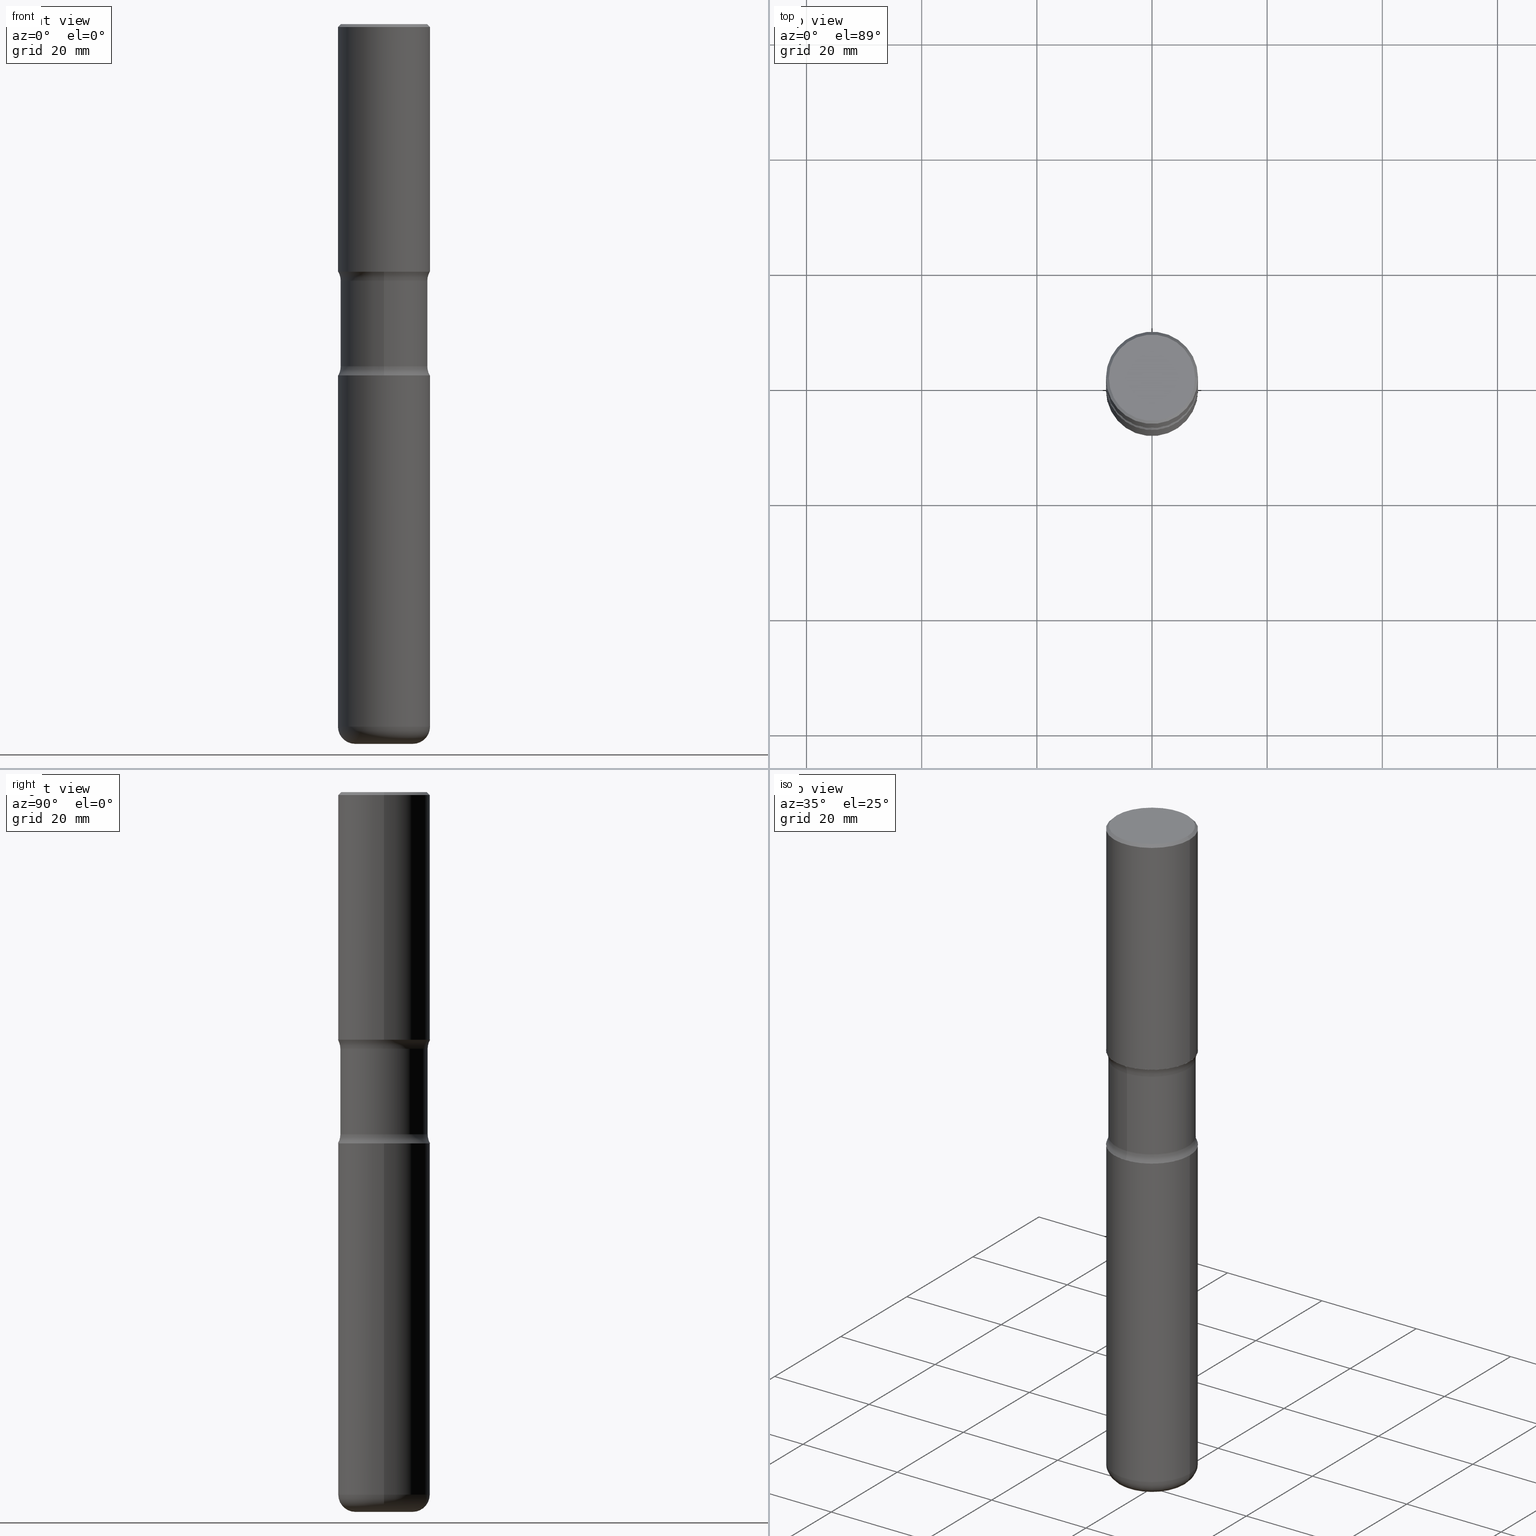
[diagram: canonical four-view strip — front | top / right | iso, engineering-drawing reading convention]
A machine part, canonical four-view strip (front | top / right | iso — engineering-drawing reading convention). The complete STEP part file that produces these views, byte-faithful:
ISO-10303-21;
HEADER;
FILE_DESCRIPTION (( 'STEP AP203' ),
    '1' );
FILE_NAME ('44755.STEP',
    '2024-03-02T02:49:36',
    ( '' ),
    ( '' ),
    'SwSTEP 2.0',
    'SolidWorks 2023',
    '' );
FILE_SCHEMA (( 'CONFIG_CONTROL_DESIGN' ));
ENDSEC;

DATA;
#1 = AXIS2_PLACEMENT_3D ( 'NONE', #361, #317, #101 ) ;
#2 = DIRECTION ( 'NONE',  ( -2.445468806185136597E-29, 3.491481338843145583E-15, 1.000000000000000000 ) ) ;
#3 = CYLINDRICAL_SURFACE ( 'NONE', #406, 0.3149500000000002853 ) ;
#4 = ORIENTED_EDGE ( 'NONE', *, *, #58, .T. ) ;
#5 = CARTESIAN_POINT ( 'NONE',  ( 2.199284095337349824E-15, 0.3149499999999917921, -2.401600000000000623 ) ) ;
#6 = EDGE_LOOP ( 'NONE', ( #503, #223 ) ) ;
#7 = AXIS2_PLACEMENT_3D ( 'NONE', #441, #45, #51 ) ;
#8 = CC_DESIGN_APPROVAL ( #261, ( #135 ) ) ;
#9 = CYLINDRICAL_SURFACE ( 'NONE', #189, 0.2984999999999999876 ) ;
#10 = VERTEX_POINT ( 'NONE', #342 ) ;
#11 = ADVANCED_FACE ( 'NONE', ( #46 ), #222, .T. ) ;
#12 = PLANE ( 'NONE',  #1 ) ;
#13 = ORIENTED_EDGE ( 'NONE', *, *, #76, .F. ) ;
#14 = ADVANCED_FACE ( 'NONE', ( #220 ), #553, .F. ) ;
#15 = AXIS2_PLACEMENT_3D ( 'NONE', #422, #32, #125 ) ;
#16 = CIRCLE ( 'NONE', #197, 0.1180000000000000770 ) ;
#17 = PERSON_AND_ORGANIZATION ( #469, #371 ) ;
#18 = VERTEX_POINT ( 'NONE', #352 ) ;
#19 = DIRECTION ( 'NONE',  ( -2.445468806185136597E-29, 3.491481338843145583E-15, 1.000000000000000000 ) ) ;
#20 = DIRECTION ( 'NONE',  ( 1.000000000000000000, -6.982962677686267499E-15, 4.876176775795936353E-29 ) ) ;
#21 = CIRCLE ( 'NONE', #217, 0.2984999999999999876 ) ;
#22 = CIRCLE ( 'NONE', #463, 0.3149500000000002298 ) ;
#23 = ORIENTED_EDGE ( 'NONE', *, *, #465, .T. ) ;
#24 = PLANE ( 'NONE',  #146 ) ;
#25 = APPROVAL_ROLE ( '' ) ;
#26 = CARTESIAN_POINT ( 'NONE',  ( 0.3149500000000002853, -2.199284095337291843E-15, 1.535751875536931531E-29 ) ) ;
#27 = DIRECTION ( 'NONE',  ( -2.445468806185136877E-29, 3.491481338843145188E-15, 1.000000000000000000 ) ) ;
#28 = DIRECTION ( 'NONE',  ( 2.492786920893409468E-29, -3.423719105401062515E-15, -1.000000000000000000 ) ) ;
#29 = CARTESIAN_POINT ( 'NONE',  ( 2.084414359289392801E-15, 0.2984999999999937703, -1.754983042035705765 ) ) ;
#30 = ORIENTED_EDGE ( 'NONE', *, *, #394, .T. ) ;
#31 = EDGE_CURVE ( 'NONE', #148, #131, #298, .T. ) ;
#32 = DIRECTION ( 'NONE',  ( -1.000000000000000000, 6.982962677686265922E-15, -4.883557194083112340E-29 ) ) ;
#33 = APPLICATION_CONTEXT ( 'configuration controlled 3d designs of mechanical parts and assemblies' ) ;
#34 = CARTESIAN_POINT ( 'NONE',  ( 4.261159589292944874E-29, -6.171306750507024849E-15, -1.754983042035704655 ) ) ;
#35 = DIRECTION ( 'NONE',  ( 2.492786920893409468E-29, -3.423719105401062515E-15, -1.000000000000000000 ) ) ;
#36 = ORIENTED_EDGE ( 'NONE', *, *, #165, .T. ) ;
#37 = CARTESIAN_POINT ( 'NONE',  ( -2.905420902056200286E-15, -0.4235000000000060938, -1.754983042035703100 ) ) ;
#38 = ORIENTED_EDGE ( 'NONE', *, *, #396, .F. ) ;
#39 = DIRECTION ( 'NONE',  ( 1.000000000000000000, -6.860497997771530774E-15, 4.841628727647021733E-29 ) ) ;
#40 = EDGE_CURVE ( 'NONE', #169, #558, #426, .T. ) ;
#41 = LINE ( 'NONE', #391, #54 ) ;
#42 = ORIENTED_EDGE ( 'NONE', *, *, #256, .F. ) ;
#43 = CIRCLE ( 'NONE', #543, 0.3149500000000002298 ) ;
#44 = AXIS2_PLACEMENT_3D ( 'NONE', #455, #114, #68 ) ;
#45 = DIRECTION ( 'NONE',  ( -2.492786920893409188E-29, 3.423719105401062515E-15, 1.000000000000000000 ) ) ;
#46 = FACE_OUTER_BOUND ( 'NONE', #411, .T. ) ;
#47 = DATE_AND_TIME ( #50, #357 ) ;
#48 = DIRECTION ( 'NONE',  ( 2.492786920893409468E-29, -3.423719105401062515E-15, -1.000000000000000000 ) ) ;
#49 = ORIENTED_EDGE ( 'NONE', *, *, #256, .T. ) ;
#50 = CALENDAR_DATE ( 2024, 1, 3 ) ;
#51 = DIRECTION ( 'NONE',  ( -6.982962677686265922E-15, -1.000000000000000000, 3.423719105401062515E-15 ) ) ;
#52 = ORIENTED_EDGE ( 'NONE', *, *, #493, .F. ) ;
#53 = DIRECTION ( 'NONE',  ( 2.492786920893409468E-29, -3.423719105401062515E-15, -1.000000000000000000 ) ) ;
#54 = VECTOR ( 'NONE', #350, 39.37007874015748143 ) ;
#55 = ORIENTED_EDGE ( 'NONE', *, *, #76, .T. ) ;
#56 = ORIENTED_EDGE ( 'NONE', *, *, #234, .F. ) ;
#57 = VERTEX_POINT ( 'NONE', #246 ) ;
#58 = EDGE_CURVE ( 'NONE', #227, #131, #451, .T. ) ;
#59 = DIRECTION ( 'NONE',  ( -1.000000000000000000, 6.982962677686265922E-15, -4.883557194083112340E-29 ) ) ;
#60 = FACE_OUTER_BOUND ( 'NONE', #186, .T. ) ;
#61 = ADVANCED_FACE ( 'NONE', ( #208 ), #287, .F. ) ;
#62 = ORIENTED_EDGE ( 'NONE', *, *, #96, .T. ) ;
#63 = CIRCLE ( 'NONE', #443, 0.2984999999999999876 ) ;
#64 = SECURITY_CLASSIFICATION ( '', '', #107 ) ;
#65 = EDGE_LOOP ( 'NONE', ( #77, #316, #537, #83 ) ) ;
#66 = DIRECTION ( 'NONE',  ( -2.445468806185136597E-29, 3.491481338843145583E-15, 1.000000000000000000 ) ) ;
#67 = CARTESIAN_POINT ( 'NONE',  ( 0.3149500000000003408, -8.110362001998734458E-15, -1.692999999999998950 ) ) ;
#68 = DIRECTION ( 'NONE',  ( -1.000000000000000000, 7.105427357601009747E-15, 0.000000000000000000 ) ) ;
#69 = DIRECTION ( 'NONE',  ( 6.982962677686265922E-15, 1.000000000000000000, -3.423719105401062515E-15 ) ) ;
#70 = CARTESIAN_POINT ( 'NONE',  ( 0.000000000000000000, 0.000000000000000000, 0.000000000000000000 ) ) ;
#71 = DIRECTION ( 'NONE',  ( -2.445468806185136877E-29, 3.491481338843145188E-15, 1.000000000000000000 ) ) ;
#72 = AXIS2_PLACEMENT_3D ( 'NONE', #472, #132, #464 ) ;
#73 = CARTESIAN_POINT ( 'NONE',  ( 0.000000000000000000, 0.000000000000000000, 0.000000000000000000 ) ) ;
#74 = CARTESIAN_POINT ( 'NONE',  ( 4.890937612370289799E-31, -6.982962677686315028E-17, -0.02000000000000006981 ) ) ;
#75 = VERTEX_POINT ( 'NONE', #466 ) ;
#76 = EDGE_CURVE ( 'NONE', #169, #148, #21, .T. ) ;
#77 = ORIENTED_EDGE ( 'NONE', *, *, #484, .T. ) ;
#78 = CARTESIAN_POINT ( 'NONE',  ( 4.890937612370289799E-31, -6.982962677686315028E-17, -0.02000000000000006981 ) ) ;
#79 = CARTESIAN_POINT ( 'NONE',  ( -2.047858652334680349E-15, -0.2985000000000169740, -4.921299999999997787 ) ) ;
#80 = APPROVAL ( #160, 'UNSPECIFIED' ) ;
#81 = DIRECTION ( 'NONE',  ( -2.445468806185136597E-29, 3.491481338843145583E-15, 1.000000000000000000 ) ) ;
#82 = CIRCLE ( 'NONE', #270, 0.1250000000000000555 ) ;
#83 = ORIENTED_EDGE ( 'NONE', *, *, #31, .F. ) ;
#84 = CARTESIAN_POINT ( 'NONE',  ( 4.291756284682213551E-29, -6.127490541253838006E-15, -1.754983042035704655 ) ) ;
#85 = CARTESIAN_POINT ( 'NONE',  ( 5.873037884934222106E-29, -8.385141583365695685E-15, -2.401599999999999291 ) ) ;
#86 = DIRECTION ( 'NONE',  ( 6.982962677686265922E-15, 1.000000000000000000, -3.660767830705880744E-15 ) ) ;
#87 = DIRECTION ( 'NONE',  ( 6.982962677686265922E-15, 1.000000000000000000, -3.660767830705880744E-15 ) ) ;
#88 = PLANE ( 'NONE',  #7 ) ;
#89 = AXIS2_PLACEMENT_3D ( 'NONE', #252, #19, #331 ) ;
#90 = CARTESIAN_POINT ( 'NONE',  ( 1.174632031674906636E-28, -1.677063231486527962E-14, -4.803299999999999237 ) ) ;
#91 = CIRCLE ( 'NONE', #275, 0.2984999999999999876 ) ;
#92 = CIRCLE ( 'NONE', #233, 0.1250000000000000555 ) ;
#93 = CARTESIAN_POINT ( 'NONE',  ( 1.215411308950934395E-28, -1.701188661324475001E-14, -4.921299999999998676 ) ) ;
#94 = EDGE_CURVE ( 'NONE', #140, #392, #145, .T. ) ;
#95 = CARTESIAN_POINT ( 'NONE',  ( -0.3149500000000001743, 2.129454468560427756E-15, -0.02000000000000006981 ) ) ;
#96 = EDGE_CURVE ( 'NONE', #403, #57, #43, .T. ) ;
#97 = COORDINATED_UNIVERSAL_TIME_OFFSET ( 5, 0, .BEHIND. ) ;
#98 = ORIENTED_EDGE ( 'NONE', *, *, #102, .T. ) ;
#99 = CLOSED_SHELL ( 'NONE', ( #176, #239, #61, #14, #347, #327, #291, #195 ) ) ;
#100 = CIRCLE ( 'NONE', #412, 0.3149500000000002298 ) ;
#101 = DIRECTION ( 'NONE',  ( -1.000000000000000000, 6.982962677686265922E-15, -4.876176775795935793E-29 ) ) ;
#102 = EDGE_CURVE ( 'NONE', #558, #131, #519, .T. ) ;
#103 = CARTESIAN_POINT ( 'NONE',  ( 1.174632031674906636E-28, -1.677063231486527962E-14, -4.803299999999999237 ) ) ;
#104 = EDGE_LOOP ( 'NONE', ( #209, #257 ) ) ;
#105 = DIRECTION ( 'NONE',  ( 1.000000000000000000, -6.982962677686267499E-15, 4.876176775795936353E-29 ) ) ;
#106 = DIRECTION ( 'NONE',  ( 2.438088387897960049E-29, -3.491481338843145188E-15, -1.000000000000000000 ) ) ;
#107 = SECURITY_CLASSIFICATION_LEVEL ( 'unclassified' ) ;
#108 = CARTESIAN_POINT ( 'NONE',  ( 1.203488563587891146E-28, -1.718262711284877024E-14, -4.921299999999999564 ) ) ;
#109 = VECTOR ( 'NONE', #240, 39.37007874015748143 ) ;
#110 = AXIS2_PLACEMENT_3D ( 'NONE', #467, #354, #305 ) ;
#111 = FACE_OUTER_BOUND ( 'NONE', #104, .T. ) ;
#112 = DIRECTION ( 'NONE',  ( 1.000000000000000000, -6.982962677686268288E-15, 0.000000000000000000 ) ) ;
#113 = ADVANCED_FACE ( 'NONE', ( #367 ), #194, .F. ) ;
#114 = DIRECTION ( 'NONE',  ( 7.105427357601001859E-15, 1.000000000000000000, -3.491481338843145583E-15 ) ) ;
#115 = CYLINDRICAL_SURFACE ( 'NONE', #260, 0.3149500000000002853 ) ;
#116 = DIRECTION ( 'NONE',  ( -2.445468806185136597E-29, 3.491481338843145583E-15, 1.000000000000000000 ) ) ;
#117 = COORDINATED_UNIVERSAL_TIME_OFFSET ( 5, 0, .BEHIND. ) ;
#118 = ORIENTED_EDGE ( 'NONE', *, *, #415, .F. ) ;
#119 = AXIS2_PLACEMENT_3D ( 'NONE', #556, #124, #251 ) ;
#120 = VERTEX_POINT ( 'NONE', #67 ) ;
#121 = EDGE_CURVE ( 'NONE', #382, #266, #376, .T. ) ;
#122 = TOROIDAL_SURFACE ( 'NONE', #181, 0.4235000000000000986, 0.1250000000000000278 ) ;
#123 = CC_DESIGN_SECURITY_CLASSIFICATION ( #64, ( #509 ) ) ;
#124 = DIRECTION ( 'NONE',  ( -2.445468806185136597E-29, 3.491481338843145583E-15, 1.000000000000000000 ) ) ;
#125 = DIRECTION ( 'NONE',  ( -6.982962677686265133E-15, -1.000000000000000000, 0.000000000000000000 ) ) ;
#126 = VERTEX_POINT ( 'NONE', #235 ) ;
#127 = AXIS2_PLACEMENT_3D ( 'NONE', #294, #81, #496 ) ;
#128 = ORIENTED_EDGE ( 'NONE', *, *, #40, .F. ) ;
#129 = DATE_AND_TIME ( #339, #407 ) ;
#130 = CARTESIAN_POINT ( 'NONE',  ( 1.174632031674906636E-28, -1.677063231486527962E-14, -4.803299999999999237 ) ) ;
#131 = VERTEX_POINT ( 'NONE', #156 ) ;
#132 = DIRECTION ( 'NONE',  ( 2.492786920893409468E-29, -3.423719105401062515E-15, -1.000000000000000000 ) ) ;
#133 = ORIENTED_EDGE ( 'NONE', *, *, #373, .F. ) ;
#134 = CARTESIAN_POINT ( 'NONE',  ( 1.215411308950934395E-28, -1.701188661324475001E-14, -4.921299999999998676 ) ) ;
#135 = PRODUCT_DEFINITION ( 'UNKNOWN', '', #509, #479 ) ;
#136 = LINE ( 'NONE', #191, #495 ) ;
#137 = DIRECTION ( 'NONE',  ( 2.492786920893409468E-29, -3.423719105401062515E-15, -1.000000000000000000 ) ) ;
#138 = CIRCLE ( 'NONE', #247, 0.3149500000000003408 ) ;
#139 = DIRECTION ( 'NONE',  ( -2.445468806185136597E-29, 3.491481338843145583E-15, 1.000000000000000000 ) ) ;
#140 = VERTEX_POINT ( 'NONE', #325 ) ;
#141 = CC_DESIGN_PERSON_AND_ORGANIZATION_ASSIGNMENT ( #448, #193, ( #509 ) ) ;
#142 = ORIENTED_EDGE ( 'NONE', *, *, #121, .T. ) ;
#143 = CARTESIAN_POINT ( 'NONE',  ( -3.131554243005663153E-46, 4.471029511141347348E-32, 1.280553747030124924E-17 ) ) ;
#144 = ADVANCED_FACE ( 'NONE', ( #225 ), #534, .T. ) ;
#145 = CIRCLE ( 'NONE', #89, 0.1969500000000003470 ) ;
#146 = AXIS2_PLACEMENT_3D ( 'NONE', #199, #106, #322 ) ;
#147 = DIRECTION ( 'NONE',  ( 1.000000000000000000, -6.982962677686264344E-15, 0.000000000000000000 ) ) ;
#148 = VERTEX_POINT ( 'NONE', #29 ) ;
#149 = CARTESIAN_POINT ( 'NONE',  ( 5.718527368430429032E-29, -8.172929058137173834E-15, -2.339616957964294031 ) ) ;
#150 = CARTESIAN_POINT ( 'NONE',  ( 2.199284095337332469E-15, 0.3149499999999942901, -1.692999999999999616 ) ) ;
#151 = APPROVAL_ROLE ( '' ) ;
#152 = DIRECTION ( 'NONE',  ( -2.445468806185136597E-29, 3.491481338843145583E-15, 1.000000000000000000 ) ) ;
#153 = EDGE_CURVE ( 'NONE', #18, #314, #248, .T. ) ;
#154 = CARTESIAN_POINT ( 'NONE',  ( -2.104286248366415800E-15, -0.2985000000000081477, -2.339616957964292698 ) ) ;
#155 = AXIS2_PLACEMENT_3D ( 'NONE', #328, #39, #346 ) ;
#156 = CARTESIAN_POINT ( 'NONE',  ( 2.084414359289407790E-15, 0.2984999999999918274, -2.339616957964294919 ) ) ;
#157 = ORIENTED_EDGE ( 'NONE', *, *, #200, .F. ) ;
#158 = DIRECTION ( 'NONE',  ( 6.982962677686264344E-15, 1.000000000000000000, -3.469564049740290403E-15 ) ) ;
#159 = DIMENSIONAL_EXPONENTS ( 1.000000000000000000, 0.000000000000000000, 0.000000000000000000, 0.000000000000000000, 0.000000000000000000, 0.000000000000000000, 0.000000000000000000 ) ;
#160 = APPROVAL_STATUS ( 'not_yet_approved' ) ;
#161 = DIRECTION ( 'NONE',  ( 1.000000000000000000, -6.982962677686278543E-15, 0.000000000000000000 ) ) ;
#162 = DIRECTION ( 'NONE',  ( 0.000000000000000000, 0.000000000000000000, 1.000000000000000000 ) ) ;
#163 = CARTESIAN_POINT ( 'NONE',  ( 0.000000000000000000, 0.000000000000000000, 0.000000000000000000 ) ) ;
#164 = DIRECTION ( 'NONE',  ( 2.445468806185136597E-29, -3.491481338843145583E-15, -1.000000000000000000 ) ) ;
#165 = EDGE_CURVE ( 'NONE', #382, #289, #203, .T. ) ;
#166 = CONICAL_SURFACE ( 'NONE', #459, 0.3149500000000001743, 0.7853981633974460586 ) ;
#167 = DIRECTION ( 'NONE',  ( 2.492786920893409468E-29, -3.423719105401062515E-15, -1.000000000000000000 ) ) ;
#168 = EDGE_LOOP ( 'NONE', ( #250, #444, #185, #133 ) ) ;
#169 = VERTEX_POINT ( 'NONE', #379 ) ;
#170 = ADVANCED_FACE ( 'NONE', ( #416 ), #238, .T. ) ;
#171 = ORIENTED_EDGE ( 'NONE', *, *, #315, .T. ) ;
#172 = DIRECTION ( 'NONE',  ( -2.445468806185136877E-29, 3.491481338843145188E-15, 1.000000000000000000 ) ) ;
#173 = ORIENTED_EDGE ( 'NONE', *, *, #356, .F. ) ;
#174 = AXIS2_PLACEMENT_3D ( 'NONE', #74, #497, #457 ) ;
#175 = CIRCLE ( 'NONE', #508, 0.3149500000000001743 ) ;
#176 = ADVANCED_FACE ( 'NONE', ( #550 ), #431, .T. ) ;
#177 = DIRECTION ( 'NONE',  ( 1.000000000000000000, -6.982962677686267499E-15, 4.876176775795936353E-29 ) ) ;
#178 = CARTESIAN_POINT ( 'NONE',  ( -0.3149500000000002298, -1.034003260283904930E-14, -2.401599999999999291 ) ) ;
#179 = CARTESIAN_POINT ( 'NONE',  ( 0.000000000000000000, 0.000000000000000000, 0.000000000000000000 ) ) ;
#180 = ORIENTED_EDGE ( 'NONE', *, *, #515, .F. ) ;
#181 = AXIS2_PLACEMENT_3D ( 'NONE', #263, #35, #516 ) ;
#182 = CC_DESIGN_APPROVAL ( #80, ( #509 ) ) ;
#183 = DIRECTION ( 'NONE',  ( -2.445468806185136597E-29, 3.491481338843145583E-15, 1.000000000000000000 ) ) ;
#184 = ORIENTED_EDGE ( 'NONE', *, *, #481, .F. ) ;
#185 = ORIENTED_EDGE ( 'NONE', *, *, #121, .F. ) ;
#186 = EDGE_LOOP ( 'NONE', ( #514, #487, #213, #42 ) ) ;
#187 = AXIS2_PLACEMENT_3D ( 'NONE', #149, #319, #226 ) ;
#188 = PERSON_AND_ORGANIZATION_ROLE ( 'creator' ) ;
#189 = AXIS2_PLACEMENT_3D ( 'NONE', #134, #435, #258 ) ;
#190 = FACE_OUTER_BOUND ( 'NONE', #6, .T. ) ;
#191 = CARTESIAN_POINT ( 'NONE',  ( -0.3149500000000002853, 2.237854346276437562E-15, -1.549218606675783797E-29 ) ) ;
#192 = ORIENTED_EDGE ( 'NONE', *, *, #268, .T. ) ;
#193 = PERSON_AND_ORGANIZATION_ROLE ( 'design_supplier' ) ;
#194 = PLANE ( 'NONE',  #293 ) ;
#195 = ADVANCED_FACE ( 'NONE', ( #427 ), #9, .T. ) ;
#196 = DIRECTION ( 'NONE',  ( -1.000000000000000000, 6.982962677686265922E-15, -4.876176775795935793E-29 ) ) ;
#197 = AXIS2_PLACEMENT_3D ( 'NONE', #372, #546, #161 ) ;
#198 = ORIENTED_EDGE ( 'NONE', *, *, #394, .F. ) ;
#199 = CARTESIAN_POINT ( 'NONE',  ( 4.418398595452827857E-29, -1.046826783882976547E-14, -2.401599999999999291 ) ) ;
#200 = EDGE_CURVE ( 'NONE', #399, #75, #41, .T. ) ;
#201 = PRODUCT_RELATED_PRODUCT_CATEGORY ( 'detail', '', ( #299 ) ) ;
#202 = COORDINATED_UNIVERSAL_TIME_OFFSET ( 5, 0, .BEHIND. ) ;
#203 = LINE ( 'NONE', #26, #109 ) ;
#204 = VECTOR ( 'NONE', #507, 39.37007874015748143 ) ;
#205 = CLOSED_SHELL ( 'NONE', ( #458, #170, #430, #11, #286, #504 ) ) ;
#206 = ORIENTED_EDGE ( 'NONE', *, *, #547, .T. ) ;
#207 = AXIS2_PLACEMENT_3D ( 'NONE', #179, #2, #177 ) ;
#208 = FACE_OUTER_BOUND ( 'NONE', #548, .T. ) ;
#209 = ORIENTED_EDGE ( 'NONE', *, *, #234, .T. ) ;
#210 = DIRECTION ( 'NONE',  ( 2.492786920893409468E-29, -3.423719105401062515E-15, -1.000000000000000000 ) ) ;
#211 = CARTESIAN_POINT ( 'NONE',  ( 5.718527368430429032E-29, -8.172929058137173834E-15, -2.339616957964294031 ) ) ;
#212 = FACE_OUTER_BOUND ( 'NONE', #368, .T. ) ;
#213 = ORIENTED_EDGE ( 'NONE', *, *, #465, .F. ) ;
#214 = DIRECTION ( 'NONE',  ( 6.982962677686266711E-15, 1.000000000000000000, -3.660767830705880744E-15 ) ) ;
#215 = LINE ( 'NONE', #95, #366 ) ;
#216 = ORIENTED_EDGE ( 'NONE', *, *, #400, .T. ) ;
#217 = AXIS2_PLACEMENT_3D ( 'NONE', #34, #210, #86 ) ;
#218 = CIRCLE ( 'NONE', #127, 0.3149500000000003408 ) ;
#219 = CARTESIAN_POINT ( 'NONE',  ( 4.140178688871433779E-29, -5.911077906661441431E-15, -1.692999999999998950 ) ) ;
#220 = FACE_OUTER_BOUND ( 'NONE', #395, .T. ) ;
#221 = CYLINDRICAL_SURFACE ( 'NONE', #207, 0.3149500000000002853 ) ;
#222 = TOROIDAL_SURFACE ( 'NONE', #494, 0.1969500000000003470, 0.1180000000000001187 ) ;
#223 = ORIENTED_EDGE ( 'NONE', *, *, #454, .F. ) ;
#224 = TOROIDAL_SURFACE ( 'NONE', #72, 0.4235000000000000986, 0.1250000000000000278 ) ;
#225 = FACE_OUTER_BOUND ( 'NONE', #362, .T. ) ;
#226 = DIRECTION ( 'NONE',  ( 6.982962677686266711E-15, 1.000000000000000000, -3.660767830705880744E-15 ) ) ;
#227 = VERTEX_POINT ( 'NONE', #5 ) ;
#228 = PERSON_AND_ORGANIZATION ( #469, #371 ) ;
#229 = CALENDAR_DATE ( 2024, 1, 3 ) ;
#230 = DATE_TIME_ROLE ( 'creation_date' ) ;
#231 = CLOSED_SHELL ( 'NONE', ( #345, #144, #512, #528, #113, #329 ) ) ;
#232 = AXIS2_PLACEMENT_3D ( 'NONE', #483, #66, #437 ) ;
#233 = AXIS2_PLACEMENT_3D ( 'NONE', #363, #59, #500 ) ;
#234 = EDGE_CURVE ( 'NONE', #10, #399, #333, .T. ) ;
#235 = CARTESIAN_POINT ( 'NONE',  ( -2.160713844398086565E-15, -0.3149500000000086675, -2.401599999999998403 ) ) ;
#236 = MECHANICAL_CONTEXT ( 'NONE', #336, 'mechanical' ) ;
#237 = CARTESIAN_POINT ( 'NONE',  ( 5.873037884934222106E-29, -8.385141583365695685E-15, -2.401599999999999291 ) ) ;
#238 = TOROIDAL_SURFACE ( 'NONE', #119, 0.1969500000000003470, 0.1180000000000001187 ) ;
#239 = ADVANCED_FACE ( 'NONE', ( #559 ), #122, .F. ) ;
#240 = DIRECTION ( 'NONE',  ( -2.445468806185136877E-29, 3.491481338843145188E-15, 1.000000000000000000 ) ) ;
#241 = EDGE_LOOP ( 'NONE', ( #440, #335, #98, #243 ) ) ;
#242 = LENGTH_MEASURE_WITH_UNIT ( LENGTH_MEASURE( 0.02539999999999999897 ), #326 );
#243 = ORIENTED_EDGE ( 'NONE', *, *, #58, .F. ) ;
#244 = APPROVAL_STATUS ( 'not_yet_approved' ) ;
#245 = DIRECTION ( 'NONE',  ( -2.445468806185136597E-29, 3.491481338843145583E-15, 1.000000000000000000 ) ) ;
#246 = CARTESIAN_POINT ( 'NONE',  ( -2.160713844398104314E-15, -0.3149500000000061695, -1.692999999999997396 ) ) ;
#247 = AXIS2_PLACEMENT_3D ( 'NONE', #219, #139, #309 ) ;
#248 = LINE ( 'NONE', #456, #353 ) ;
#249 = ORIENTED_EDGE ( 'NONE', *, *, #400, .F. ) ;
#250 = ORIENTED_EDGE ( 'NONE', *, *, #530, .T. ) ;
#251 = DIRECTION ( 'NONE',  ( 1.000000000000000000, -6.982962677686266711E-15, 4.883557194083112901E-29 ) ) ;
#252 = CARTESIAN_POINT ( 'NONE',  ( 1.203488563587891146E-28, -1.718262711284877024E-14, -4.921299999999999564 ) ) ;
#253 = PERSON_AND_ORGANIZATION ( #469, #371 ) ;
#254 = DIRECTION ( 'NONE',  ( 2.492786920893409468E-29, -3.423719105401062515E-15, -1.000000000000000000 ) ) ;
#255 = DIRECTION ( 'NONE',  ( 2.492786920893409468E-29, -3.423719105401062515E-15, -1.000000000000000000 ) ) ;
#256 = EDGE_CURVE ( 'NONE', #120, #75, #438, .T. ) ;
#257 = ORIENTED_EDGE ( 'NONE', *, *, #415, .T. ) ;
#258 = DIRECTION ( 'NONE',  ( 6.982962677686265922E-15, 1.000000000000000000, -3.660767830705880744E-15 ) ) ;
#259 = AXIS2_PLACEMENT_3D ( 'NONE', #338, #292, #462 ) ;
#260 = AXIS2_PLACEMENT_3D ( 'NONE', #70, #301, #499 ) ;
#261 = APPROVAL ( #244, 'UNSPECIFIED' ) ;
#262 = DIRECTION ( 'NONE',  ( 1.000000000000000000, -6.982962677686266711E-15, 4.883557194083112901E-29 ) ) ;
#263 = CARTESIAN_POINT ( 'NONE',  ( 5.673769307671268103E-29, -8.237025148614905937E-15, -2.339616957964293587 ) ) ;
#264 = ORIENTED_EDGE ( 'NONE', *, *, #268, .F. ) ;
#265 = DIRECTION ( 'NONE',  ( 1.000000000000000000, -6.982962677686267499E-15, 4.876053491004732105E-29 ) ) ;
#266 = VERTEX_POINT ( 'NONE', #343 ) ;
#267 = DIRECTION ( 'NONE',  ( -2.445468806185136597E-29, 3.491481338843145583E-15, 1.000000000000000000 ) ) ;
#268 = EDGE_CURVE ( 'NONE', #266, #382, #453, .T. ) ;
#269 = EDGE_LOOP ( 'NONE', ( #157, #56, #425, #385 ) ) ;
#270 = AXIS2_PLACEMENT_3D ( 'NONE', #37, #560, #524 ) ;
#271 = EDGE_CURVE ( 'NONE', #10, #314, #215, .T. ) ;
#272 = DIRECTION ( 'NONE',  ( 2.492786920893409188E-29, -3.423719105401062515E-15, -1.000000000000000000 ) ) ;
#273 = EDGE_CURVE ( 'NONE', #18, #120, #138, .T. ) ;
#274 = AXIS2_PLACEMENT_3D ( 'NONE', #103, #152, #112 ) ;
#275 = AXIS2_PLACEMENT_3D ( 'NONE', #474, #53, #418 ) ;
#276 = AXIS2_PLACEMENT_3D ( 'NONE', #143, #116, #533 ) ;
#277 = CC_DESIGN_PERSON_AND_ORGANIZATION_ASSIGNMENT ( #280, #529, ( #135 ) ) ;
#278 = CC_DESIGN_APPROVAL ( #337, ( #64 ) ) ;
#279 = COORDINATED_UNIVERSAL_TIME_OFFSET ( 5, 0, .BEHIND. ) ;
#280 = PERSON_AND_ORGANIZATION ( #469, #371 ) ;
#281 = DIRECTION ( 'NONE',  ( 2.438088387897960049E-29, -3.491481338843145188E-15, -1.000000000000000000 ) ) ;
#282 = PLANE ( 'NONE',  #423 ) ;
#283 = CARTESIAN_POINT ( 'NONE',  ( 4.106649072789150679E-29, -5.959094225278499842E-15, -1.692999999999998506 ) ) ;
#284 = CARTESIAN_POINT ( 'NONE',  ( 5.165621858879761570E-29, -4.442584922608863595E-15, -1.692999999999998506 ) ) ;
#285 = CARTESIAN_POINT ( 'NONE',  ( 0.1969500000000003470, -1.855792161221908360E-14, -4.921299999999999564 ) ) ;
#286 = ADVANCED_FACE ( 'NONE', ( #390 ), #221, .T. ) ;
#287 = TOROIDAL_SURFACE ( 'NONE', #259, 0.4234999999999999321, 0.1250000000000000555 ) ;
#288 = CIRCLE ( 'NONE', #520, 0.3149500000000001743 ) ;
#289 = VERTEX_POINT ( 'NONE', #300 ) ;
#290 = MANIFOLD_SOLID_BREP ( 'Body-Move/Copy2[4]', #99 ) ;
#291 = ADVANCED_FACE ( 'NONE', ( #212 ), #224, .F. ) ;
#292 = DIRECTION ( 'NONE',  ( 2.492786920893409468E-29, -3.423719105401062515E-15, -1.000000000000000000 ) ) ;
#293 = AXIS2_PLACEMENT_3D ( 'NONE', #540, #541, #482 ) ;
#294 = CARTESIAN_POINT ( 'NONE',  ( 4.140178688871433779E-29, -5.911077906661441431E-15, -1.692999999999998950 ) ) ;
#295 = AXIS2_PLACEMENT_3D ( 'NONE', #85, #48, #384 ) ;
#296 = DIRECTION ( 'NONE',  ( -2.445468806185136597E-29, 3.491481338843145583E-15, 1.000000000000000000 ) ) ;
#297 = ORIENTED_EDGE ( 'NONE', *, *, #273, .T. ) ;
#298 = LINE ( 'NONE', #505, #388 ) ;
#299 = PRODUCT ( '44755', '44755', '', ( #236 ) ) ;
#300 = CARTESIAN_POINT ( 'NONE',  ( 0.3149500000000002298, -1.058442567870298713E-14, -2.401599999999999291 ) ) ;
#301 = DIRECTION ( 'NONE',  ( -2.445468806185136597E-29, 3.491481338843145583E-15, 1.000000000000000000 ) ) ;
#302 = ORIENTED_EDGE ( 'NONE', *, *, #153, .F. ) ;
#303 = EDGE_CURVE ( 'NONE', #126, #227, #535, .T. ) ;
#304 = MANIFOLD_SOLID_BREP ( 'Body-Move/Copy2[1]', #205 ) ;
#305 = DIRECTION ( 'NONE',  ( 1.000000000000000000, -6.982962677686264344E-15, 0.000000000000000000 ) ) ;
#306 = CC_DESIGN_PERSON_AND_ORGANIZATION_ASSIGNMENT ( #253, #332, ( #64 ) ) ;
#307 = MANIFOLD_SOLID_BREP ( 'Body-Move/Copy2[2]', #231 ) ;
#308 =( NAMED_UNIT ( * ) PLANE_ANGLE_UNIT ( ) SI_UNIT ( $, .RADIAN. ) );
#309 = DIRECTION ( 'NONE',  ( 1.000000000000000000, -6.982962677686268288E-15, 0.000000000000000000 ) ) ;
#310 = AXIS2_PLACEMENT_3D ( 'NONE', #84, #518, #380 ) ;
#311 = AXIS2_PLACEMENT_3D ( 'NONE', #93, #255, #87 ) ;
#312 = ORIENTED_EDGE ( 'NONE', *, *, #481, .T. ) ;
#313 = CARTESIAN_POINT ( 'NONE',  ( -0.3149500000000001743, 2.129454468560427756E-15, -0.02000000000000006981 ) ) ;
#314 = VERTEX_POINT ( 'NONE', #313 ) ;
#315 = EDGE_CURVE ( 'NONE', #525, #289, #521, .T. ) ;
#316 = ORIENTED_EDGE ( 'NONE', *, *, #40, .T. ) ;
#317 = DIRECTION ( 'NONE',  ( 2.438088387897960049E-29, -3.491481338843145188E-15, -1.000000000000000000 ) ) ;
#318 = DATE_AND_TIME ( #229, #334 ) ;
#319 = DIRECTION ( 'NONE',  ( 2.492786920893409468E-29, -3.423719105401062515E-15, -1.000000000000000000 ) ) ;
#320 = APPROVAL_DATE_TIME ( #129, #337 ) ;
#321 = DIRECTION ( 'NONE',  ( -1.000000000000000000, 6.982962677686265922E-15, 0.000000000000000000 ) ) ;
#322 = DIRECTION ( 'NONE',  ( -1.000000000000000000, 6.982962677686265922E-15, -4.876176775795935793E-29 ) ) ;
#323 = APPROVAL_PERSON_ORGANIZATION ( #491, #337, #25 ) ;
#324 = APPLICATION_PROTOCOL_DEFINITION ( 'international standard', 'config_control_design', 1994, #33 ) ;
#325 = CARTESIAN_POINT ( 'NONE',  ( -0.1969500000000003470, -1.515799558167904606E-14, -4.921299999999999564 ) ) ;
#326 =( LENGTH_UNIT ( ) NAMED_UNIT ( * ) SI_UNIT ( $, .METRE. ) );
#327 = ADVANCED_FACE ( 'NONE', ( #468 ), #88, .F. ) ;
#328 = CARTESIAN_POINT ( 'NONE',  ( -2.905420902056186875E-15, -0.4235000000000083142, -2.339616957964292254 ) ) ;
#329 = ADVANCED_FACE ( 'NONE', ( #397 ), #3, .T. ) ;
#330 = ORIENTED_EDGE ( 'NONE', *, *, #315, .F. ) ;
#331 = DIRECTION ( 'NONE',  ( 1.000000000000000000, -6.982962677686269077E-15, 0.000000000000000000 ) ) ;
#332 = PERSON_AND_ORGANIZATION_ROLE ( 'classification_officer' ) ;
#333 = CIRCLE ( 'NONE', #355, 0.2949500000000001565 ) ;
#334 = LOCAL_TIME ( 21, 49, 36.00000000000000000, #117 ) ;
#335 = ORIENTED_EDGE ( 'NONE', *, *, #375, .T. ) ;
#336 = APPLICATION_CONTEXT ( 'configuration controlled 3d designs of mechanical parts and assemblies' ) ;
#337 = APPROVAL ( #413, 'UNSPECIFIED' ) ;
#338 = CARTESIAN_POINT ( 'NONE',  ( 4.291756284682213551E-29, -6.127490541253838006E-15, -1.754983042035704655 ) ) ;
#339 = CALENDAR_DATE ( 2024, 1, 3 ) ;
#340 = ORIENTED_EDGE ( 'NONE', *, *, #375, .F. ) ;
#341 = PRODUCT_DEFINITION_SHAPE ( 'NONE', 'NONE',  #135 ) ;
#342 = CARTESIAN_POINT ( 'NONE',  ( -0.2949500000000001565, 2.094539655171996896E-15, 1.280553747028672311E-17 ) ) ;
#343 = CARTESIAN_POINT ( 'NONE',  ( -0.3149500000000003963, -1.453277796858884048E-14, -4.803299999999999237 ) ) ;
#344 = APPROVAL_PERSON_ORGANIZATION ( #17, #80, #151 ) ;
#345 = ADVANCED_FACE ( 'NONE', ( #60 ), #488, .T. ) ;
#346 = DIRECTION ( 'NONE',  ( 6.860497997771532351E-15, 1.000000000000000000, 0.000000000000000000 ) ) ;
#347 = ADVANCED_FACE ( 'NONE', ( #190 ), #282, .F. ) ;
#348 = DIRECTION ( 'NONE',  ( 1.000000000000000000, -6.982962677686268288E-15, 0.000000000000000000 ) ) ;
#349 = ORIENTED_EDGE ( 'NONE', *, *, #94, .T. ) ;
#350 = DIRECTION ( 'NONE',  ( 0.7071067811865459074, -7.319954787623249734E-15, -0.7071067811865491270 ) ) ;
#351 = DIRECTION ( 'NONE',  ( 6.982962677686264344E-15, 1.000000000000000000, -3.469564049740291192E-15 ) ) ;
#352 = CARTESIAN_POINT ( 'NONE',  ( -0.3149500000000003408, -7.525994204427138162E-16, -1.692999999999998950 ) ) ;
#353 = VECTOR ( 'NONE', #71, 39.37007874015748143 ) ;
#354 = DIRECTION ( 'NONE',  ( -2.445468806185136597E-29, 3.491481338843145583E-15, 1.000000000000000000 ) ) ;
#355 = AXIS2_PLACEMENT_3D ( 'NONE', #513, #296, #265 ) ;
#356 = EDGE_CURVE ( 'NONE', #120, #18, #218, .T. ) ;
#357 = LOCAL_TIME ( 21, 49, 36.00000000000000000, #97 ) ;
#358 = ORIENTED_EDGE ( 'NONE', *, *, #530, .F. ) ;
#359 = AXIS2_PLACEMENT_3D ( 'NONE', #73, #162, #364 ) ;
#360 = EDGE_LOOP ( 'NONE', ( #302, #297, #49, #180 ) ) ;
#361 = CARTESIAN_POINT ( 'NONE',  ( 2.059624841783565247E-15, 0.2949500000000001565, -1.023409652156635730E-15 ) ) ;
#362 = EDGE_LOOP ( 'NONE', ( #118, #527, #23, #551 ) ) ;
#363 = CARTESIAN_POINT ( 'NONE',  ( 2.957284694000176140E-15, 0.4234999999999937703, -1.754983042035705987 ) ) ;
#364 = DIRECTION ( 'NONE',  ( 1.000000000000000000, 0.000000000000000000, 0.000000000000000000 ) ) ;
#365 = EDGE_LOOP ( 'NONE', ( #142, #381, #184, #432 ) ) ;
#366 = VECTOR ( 'NONE', #522, 39.37007874015748143 ) ;
#367 = FACE_OUTER_BOUND ( 'NONE', #460, .T. ) ;
#368 = EDGE_LOOP ( 'NONE', ( #340, #198, #4, #498 ) ) ;
#369 = EDGE_CURVE ( 'NONE', #131, #558, #63, .T. ) ;
#370 = VECTOR ( 'NONE', #172, 39.37007874015748143 ) ;
#371 = ORGANIZATION ( 'UNSPECIFIED', 'UNSPECIFIED', '' ) ;
#372 = CARTESIAN_POINT ( 'NONE',  ( 0.1969500000000003470, -1.814592681423558983E-14, -4.803299999999999237 ) ) ;
#373 = EDGE_CURVE ( 'NONE', #392, #382, #16, .T. ) ;
#374 = PERSON_AND_ORGANIZATION ( #469, #371 ) ;
#375 = EDGE_CURVE ( 'NONE', #126, #558, #377, .T. ) ;
#376 = CIRCLE ( 'NONE', #274, 0.3149500000000003408 ) ;
#377 = CIRCLE ( 'NONE', #155, 0.1250000000000000278 ) ;
#378 = LOCAL_TIME ( 21, 49, 36.00000000000000000, #555 ) ;
#379 = CARTESIAN_POINT ( 'NONE',  ( -2.104286248366431972E-15, -0.2985000000000062048, -1.754983042035703544 ) ) ;
#380 = DIRECTION ( 'NONE',  ( 6.982962677686265922E-15, 1.000000000000000000, -3.423719105401062120E-15 ) ) ;
#381 = ORIENTED_EDGE ( 'NONE', *, *, #396, .T. ) ;
#382 = VERTEX_POINT ( 'NONE', #442 ) ;
#383 = CALENDAR_DATE ( 2024, 1, 3 ) ;
#384 = DIRECTION ( 'NONE',  ( 6.982962677686264344E-15, 1.000000000000000000, -3.469564049740291192E-15 ) ) ;
#385 = ORIENTED_EDGE ( 'NONE', *, *, #515, .T. ) ;
#386 = DIRECTION ( 'NONE',  ( 2.492786920893409468E-29, -3.423719105401062515E-15, -1.000000000000000000 ) ) ;
#387 = DATE_AND_TIME ( #383, #378 ) ;
#388 = VECTOR ( 'NONE', #137, 39.37007874015748143 ) ;
#389 = CIRCLE ( 'NONE', #276, 0.2949500000000001565 ) ;
#390 = FACE_OUTER_BOUND ( 'NONE', #461, .T. ) ;
#391 = CARTESIAN_POINT ( 'NONE',  ( 0.3149500000000001743, -2.230543471175008239E-15, -0.02000000000000006981 ) ) ;
#392 = VERTEX_POINT ( 'NONE', #285 ) ;
#393 = APPROVAL_DATE_TIME ( #47, #261 ) ;
#394 = EDGE_CURVE ( 'NONE', #227, #126, #175, .T. ) ;
#395 = EDGE_LOOP ( 'NONE', ( #249, #531, #206, #62 ) ) ;
#396 = EDGE_CURVE ( 'NONE', #266, #525, #136, .T. ) ;
#397 = FACE_OUTER_BOUND ( 'NONE', #360, .T. ) ;
#398 = AXIS2_PLACEMENT_3D ( 'NONE', #410, #281, #196 ) ;
#399 = VERTEX_POINT ( 'NONE', #549 ) ;
#400 = EDGE_CURVE ( 'NONE', #169, #57, #82, .T. ) ;
#401 = APPROVAL_ROLE ( '' ) ;
#402 = DIRECTION ( 'NONE',  ( 1.000000000000000000, -6.982962677686269077E-15, 0.000000000000000000 ) ) ;
#403 = VERTEX_POINT ( 'NONE', #150 ) ;
#404 = DIRECTION ( 'NONE',  ( -2.445468806185136597E-29, 3.491481338843145583E-15, 1.000000000000000000 ) ) ;
#405 = EDGE_LOOP ( 'NONE', ( #358, #417 ) ) ;
#406 = AXIS2_PLACEMENT_3D ( 'NONE', #163, #446, #20 ) ;
#407 = LOCAL_TIME ( 21, 49, 36.00000000000000000, #202 ) ;
#408 = PLANE ( 'NONE',  #398 ) ;
#409 = APPLICATION_PROTOCOL_DEFINITION ( 'international standard', 'config_control_design', 1994, #336 ) ;
#410 = CARTESIAN_POINT ( 'NONE',  ( -7.032014756755515495E-29, -4.448751369567674356E-14, -4.921299999999998676 ) ) ;
#411 = EDGE_LOOP ( 'NONE', ( #52, #349, #473, #264 ) ) ;
#412 = AXIS2_PLACEMENT_3D ( 'NONE', #517, #475, #147 ) ;
#413 = APPROVAL_STATUS ( 'not_yet_approved' ) ;
#414 = EDGE_LOOP ( 'NONE', ( #128, #55, #557, #428 ) ) ;
#415 = EDGE_CURVE ( 'NONE', #399, #10, #389, .T. ) ;
#416 = FACE_OUTER_BOUND ( 'NONE', #168, .T. ) ;
#417 = ORIENTED_EDGE ( 'NONE', *, *, #94, .F. ) ;
#418 = DIRECTION ( 'NONE',  ( 6.982962677686265922E-15, 1.000000000000000000, -3.660767830705880744E-15 ) ) ;
#419 = CC_DESIGN_DATE_AND_TIME_ASSIGNMENT ( #387, #511, ( #64 ) ) ;
#420 =( CONVERSION_BASED_UNIT ( 'INCH', #242 ) LENGTH_UNIT ( ) NAMED_UNIT ( #159 ) );
#421 = EDGE_LOOP ( 'NONE', ( #30, #436 ) ) ;
#422 = CARTESIAN_POINT ( 'NONE',  ( 2.957284694000191129E-15, 0.4234999999999918274, -2.339616957964294919 ) ) ;
#423 = AXIS2_PLACEMENT_3D ( 'NONE', #284, #272, #69 ) ;
#424 = LOCAL_TIME ( 21, 49, 36.00000000000000000, #279 ) ;
#425 = ORIENTED_EDGE ( 'NONE', *, *, #271, .T. ) ;
#426 = LINE ( 'NONE', #79, #204 ) ;
#427 = FACE_OUTER_BOUND ( 'NONE', #414, .T. ) ;
#428 = ORIENTED_EDGE ( 'NONE', *, *, #102, .F. ) ;
#429 = ORIENTED_EDGE ( 'NONE', *, *, #454, .T. ) ;
#430 = ADVANCED_FACE ( 'NONE', ( #538 ), #408, .T. ) ;
#431 = CYLINDRICAL_SURFACE ( 'NONE', #311, 0.2984999999999999876 ) ;
#432 = ORIENTED_EDGE ( 'NONE', *, *, #165, .F. ) ;
#433 = PERSON_AND_ORGANIZATION ( #469, #371 ) ;
#434 = CIRCLE ( 'NONE', #554, 0.1969500000000003470 ) ;
#435 = DIRECTION ( 'NONE',  ( 2.492786920893409468E-29, -3.423719105401062515E-15, -1.000000000000000000 ) ) ;
#436 = ORIENTED_EDGE ( 'NONE', *, *, #303, .T. ) ;
#437 = DIRECTION ( 'NONE',  ( 1.000000000000000000, -6.982962677686265922E-15, 0.000000000000000000 ) ) ;
#438 = LINE ( 'NONE', #510, #370 ) ;
#439 = UNCERTAINTY_MEASURE_WITH_UNIT (LENGTH_MEASURE( 1.000000000000000082E-05 ), #420, 'distance_accuracy_value', 'NONE');
#440 = ORIENTED_EDGE ( 'NONE', *, *, #303, .F. ) ;
#441 = CARTESIAN_POINT ( 'NONE',  ( 4.418398595452827857E-29, -1.046826783882976547E-14, -2.401599999999999291 ) ) ;
#442 = CARTESIAN_POINT ( 'NONE',  ( 0.3149500000000003963, -1.896991641020257106E-14, -4.803299999999999237 ) ) ;
#443 = AXIS2_PLACEMENT_3D ( 'NONE', #211, #254, #214 ) ;
#444 = ORIENTED_EDGE ( 'NONE', *, *, #493, .T. ) ;
#445 = DIRECTION ( 'NONE',  ( 6.982962677686264344E-15, 1.000000000000000000, -3.469564049740290403E-15 ) ) ;
#446 = DIRECTION ( 'NONE',  ( -2.445468806185136597E-29, 3.491481338843145583E-15, 1.000000000000000000 ) ) ;
#447 = ORIENTED_EDGE ( 'NONE', *, *, #547, .F. ) ;
#448 = PERSON_AND_ORGANIZATION ( #469, #371 ) ;
#449 = ADVANCED_BREP_SHAPE_REPRESENTATION ( '44755', ( #304, #307, #290, #359 ), #523 ) ;
#450 = CARTESIAN_POINT ( 'NONE',  ( 0.000000000000000000, 0.000000000000000000, 0.000000000000000000 ) ) ;
#451 = CIRCLE ( 'NONE', #15, 0.1250000000000000278 ) ;
#452 = CALENDAR_DATE ( 2024, 1, 3 ) ;
#453 = CIRCLE ( 'NONE', #544, 0.3149500000000003408 ) ;
#454 = EDGE_CURVE ( 'NONE', #57, #403, #22, .T. ) ;
#455 = CARTESIAN_POINT ( 'NONE',  ( -0.1969500000000003470, -1.537121839678576102E-14, -4.803299999999999237 ) ) ;
#456 = CARTESIAN_POINT ( 'NONE',  ( -0.3149500000000002853, 2.237854346276437562E-15, -1.549218606675783797E-29 ) ) ;
#457 = DIRECTION ( 'NONE',  ( -1.000000000000000000, 6.982962677686265922E-15, 0.000000000000000000 ) ) ;
#458 = ADVANCED_FACE ( 'NONE', ( #489 ), #115, .T. ) ;
#459 = AXIS2_PLACEMENT_3D ( 'NONE', #492, #164, #321 ) ;
#460 = EDGE_LOOP ( 'NONE', ( #173, #476 ) ) ;
#461 = EDGE_LOOP ( 'NONE', ( #38, #192, #36, #330 ) ) ;
#462 = DIRECTION ( 'NONE',  ( 6.982962677686265922E-15, 1.000000000000000000, -3.423719105401062120E-15 ) ) ;
#463 = AXIS2_PLACEMENT_3D ( 'NONE', #501, #28, #158 ) ;
#464 = DIRECTION ( 'NONE',  ( 6.982962677686265922E-15, 1.000000000000000000, -3.423719105401062515E-15 ) ) ;
#465 = EDGE_CURVE ( 'NONE', #75, #314, #288, .T. ) ;
#466 = CARTESIAN_POINT ( 'NONE',  ( 0.3149500000000001743, -2.230543471175008239E-15, -0.02000000000000006981 ) ) ;
#467 = CARTESIAN_POINT ( 'NONE',  ( 5.873037884934222106E-29, -8.385141583365695685E-15, -2.401599999999999291 ) ) ;
#468 = FACE_OUTER_BOUND ( 'NONE', #421, .T. ) ;
#469 = PERSON ( 'UNSPECIFIED', 'UNSPECIFIED', 'UNSPECIFIED', ('UNSPECIFIED'), ('UNSPECIFIED'), ('UNSPECIFIED') ) ;
#470 = DIRECTION ( 'NONE',  ( -2.445468806185136597E-29, 3.491481338843145583E-15, 1.000000000000000000 ) ) ;
#471 = CIRCLE ( 'NONE', #232, 0.3149500000000001743 ) ;
#472 = CARTESIAN_POINT ( 'NONE',  ( 5.673769307671268103E-29, -8.237025148614905937E-15, -2.339616957964293587 ) ) ;
#473 = ORIENTED_EDGE ( 'NONE', *, *, #373, .T. ) ;
#474 = CARTESIAN_POINT ( 'NONE',  ( 4.261159589292944874E-29, -6.171306750507024849E-15, -1.754983042035704655 ) ) ;
#475 = DIRECTION ( 'NONE',  ( -2.445468806185136597E-29, 3.491481338843145583E-15, 1.000000000000000000 ) ) ;
#476 = ORIENTED_EDGE ( 'NONE', *, *, #273, .F. ) ;
#477 = CIRCLE ( 'NONE', #44, 0.1180000000000000770 ) ;
#478 = CC_DESIGN_DATE_AND_TIME_ASSIGNMENT ( #318, #230, ( #135 ) ) ;
#479 = DESIGN_CONTEXT ( 'detailed design', #33, 'design' ) ;
#480 = SHAPE_DEFINITION_REPRESENTATION ( #341, #449 ) ;
#481 = EDGE_CURVE ( 'NONE', #289, #525, #100, .T. ) ;
#482 = DIRECTION ( 'NONE',  ( 1.000000000000000000, -6.982962677686265922E-15, 4.876176775795935793E-29 ) ) ;
#483 = CARTESIAN_POINT ( 'NONE',  ( 4.890937612370289799E-31, -6.982962677686315028E-17, -0.02000000000000006981 ) ) ;
#484 = EDGE_CURVE ( 'NONE', #148, #169, #91, .T. ) ;
#485 = AXIS2_PLACEMENT_3D ( 'NONE', #450, #404, #105 ) ;
#486 = FACE_OUTER_BOUND ( 'NONE', #269, .T. ) ;
#487 = ORIENTED_EDGE ( 'NONE', *, *, #153, .T. ) ;
#488 = CYLINDRICAL_SURFACE ( 'NONE', #485, 0.3149500000000002853 ) ;
#489 = FACE_OUTER_BOUND ( 'NONE', #365, .T. ) ;
#490 = DATE_AND_TIME ( #452, #424 ) ;
#491 = PERSON_AND_ORGANIZATION ( #469, #371 ) ;
#492 = CARTESIAN_POINT ( 'NONE',  ( 4.890937612370289799E-31, -6.982962677686315028E-17, -0.02000000000000006981 ) ) ;
#493 = EDGE_CURVE ( 'NONE', #140, #266, #477, .T. ) ;
#494 = AXIS2_PLACEMENT_3D ( 'NONE', #90, #470, #262 ) ;
#495 = VECTOR ( 'NONE', #27, 39.37007874015748143 ) ;
#496 = DIRECTION ( 'NONE',  ( 1.000000000000000000, -6.982962677686268288E-15, 0.000000000000000000 ) ) ;
#497 = DIRECTION ( 'NONE',  ( 2.445468806185136597E-29, -3.491481338843145583E-15, -1.000000000000000000 ) ) ;
#498 = ORIENTED_EDGE ( 'NONE', *, *, #369, .T. ) ;
#499 = DIRECTION ( 'NONE',  ( 1.000000000000000000, -6.982962677686267499E-15, 4.876176775795936353E-29 ) ) ;
#500 = DIRECTION ( 'NONE',  ( -6.982962677686267499E-15, -1.000000000000000000, 0.000000000000000000 ) ) ;
#501 = CARTESIAN_POINT ( 'NONE',  ( 4.106649072789150679E-29, -5.959094225278499842E-15, -1.692999999999998506 ) ) ;
#502 = PERSON_AND_ORGANIZATION_ROLE ( 'design_owner' ) ;
#503 = ORIENTED_EDGE ( 'NONE', *, *, #96, .F. ) ;
#504 = ADVANCED_FACE ( 'NONE', ( #552 ), #24, .F. ) ;
#505 = CARTESIAN_POINT ( 'NONE',  ( 2.084414359289471687E-15, 0.2984999999999829456, -4.921299999999999564 ) ) ;
#506 = EDGE_LOOP ( 'NONE', ( #312, #171 ) ) ;
#507 = DIRECTION ( 'NONE',  ( 2.492786920893409468E-29, -3.423719105401062515E-15, -1.000000000000000000 ) ) ;
#508 = AXIS2_PLACEMENT_3D ( 'NONE', #237, #386, #351 ) ;
#509 = PRODUCT_DEFINITION_FORMATION_WITH_SPECIFIED_SOURCE ( 'ANY', '', #299, .NOT_KNOWN. ) ;
#510 = CARTESIAN_POINT ( 'NONE',  ( 0.3149500000000002853, -2.199284095337291843E-15, 1.535751875536931531E-29 ) ) ;
#511 = DATE_TIME_ROLE ( 'classification_date' ) ;
#512 = ADVANCED_FACE ( 'NONE', ( #486 ), #166, .T. ) ;
#513 = CARTESIAN_POINT ( 'NONE',  ( -3.131554243005663153E-46, 4.471029511141347348E-32, 1.280553747030124924E-17 ) ) ;
#514 = ORIENTED_EDGE ( 'NONE', *, *, #356, .T. ) ;
#515 = EDGE_CURVE ( 'NONE', #314, #75, #471, .T. ) ;
#516 = DIRECTION ( 'NONE',  ( 6.982962677686265922E-15, 1.000000000000000000, -3.423719105401062515E-15 ) ) ;
#517 = CARTESIAN_POINT ( 'NONE',  ( 5.873037884934222106E-29, -8.385141583365695685E-15, -2.401599999999999291 ) ) ;
#518 = DIRECTION ( 'NONE',  ( 2.492786920893409468E-29, -3.423719105401062515E-15, -1.000000000000000000 ) ) ;
#519 = CIRCLE ( 'NONE', #187, 0.2984999999999999876 ) ;
#520 = AXIS2_PLACEMENT_3D ( 'NONE', #78, #245, #526 ) ;
#521 = CIRCLE ( 'NONE', #110, 0.3149500000000002298 ) ;
#522 = DIRECTION ( 'NONE',  ( -0.7071067811865459074, 2.468850131082240100E-15, -0.7071067811865491270 ) ) ;
#523 =( GEOMETRIC_REPRESENTATION_CONTEXT ( 3 ) GLOBAL_UNCERTAINTY_ASSIGNED_CONTEXT ( ( #439 ) ) GLOBAL_UNIT_ASSIGNED_CONTEXT ( ( #420, #308, #545 ) ) REPRESENTATION_CONTEXT ( 'NONE', 'WORKASPACE' ) );
#524 = DIRECTION ( 'NONE',  ( 6.860497997771530774E-15, 1.000000000000000000, 0.000000000000000000 ) ) ;
#525 = VERTEX_POINT ( 'NONE', #178 ) ;
#526 = DIRECTION ( 'NONE',  ( 1.000000000000000000, -6.982962677686265922E-15, 0.000000000000000000 ) ) ;
#527 = ORIENTED_EDGE ( 'NONE', *, *, #200, .T. ) ;
#528 = ADVANCED_FACE ( 'NONE', ( #111 ), #12, .F. ) ;
#529 = PERSON_AND_ORGANIZATION_ROLE ( 'creator' ) ;
#530 = EDGE_CURVE ( 'NONE', #392, #140, #434, .T. ) ;
#531 = ORIENTED_EDGE ( 'NONE', *, *, #484, .F. ) ;
#532 = APPROVAL_DATE_TIME ( #490, #80 ) ;
#533 = DIRECTION ( 'NONE',  ( 1.000000000000000000, -6.982962677686267499E-15, 4.876053491004732105E-29 ) ) ;
#534 = CONICAL_SURFACE ( 'NONE', #174, 0.3149500000000001743, 0.7853981633974460586 ) ;
#535 = CIRCLE ( 'NONE', #295, 0.3149500000000001743 ) ;
#536 = APPROVAL_PERSON_ORGANIZATION ( #433, #261, #401 ) ;
#537 = ORIENTED_EDGE ( 'NONE', *, *, #369, .F. ) ;
#538 = FACE_OUTER_BOUND ( 'NONE', #405, .T. ) ;
#539 = CC_DESIGN_PERSON_AND_ORGANIZATION_ASSIGNMENT ( #374, #502, ( #299 ) ) ;
#540 = CARTESIAN_POINT ( 'NONE',  ( 4.140178688871433779E-29, -5.911077906661441431E-15, -1.692999999999998950 ) ) ;
#541 = DIRECTION ( 'NONE',  ( -2.438088387897960049E-29, 3.491481338843145188E-15, 1.000000000000000000 ) ) ;
#542 = CC_DESIGN_PERSON_AND_ORGANIZATION_ASSIGNMENT ( #228, #188, ( #509 ) ) ;
#543 = AXIS2_PLACEMENT_3D ( 'NONE', #283, #167, #445 ) ;
#544 = AXIS2_PLACEMENT_3D ( 'NONE', #130, #183, #348 ) ;
#545 =( NAMED_UNIT ( * ) SI_UNIT ( $, .STERADIAN. ) SOLID_ANGLE_UNIT ( ) );
#546 = DIRECTION ( 'NONE',  ( -6.982962677686266711E-15, -1.000000000000000000, 3.491481338843145583E-15 ) ) ;
#547 = EDGE_CURVE ( 'NONE', #148, #403, #92, .T. ) ;
#548 = EDGE_LOOP ( 'NONE', ( #13, #216, #429, #447 ) ) ;
#549 = CARTESIAN_POINT ( 'NONE',  ( 0.2949500000000001565, -2.127023677808861258E-15, 1.280553747031588939E-17 ) ) ;
#550 = FACE_OUTER_BOUND ( 'NONE', #65, .T. ) ;
#551 = ORIENTED_EDGE ( 'NONE', *, *, #271, .F. ) ;
#552 = FACE_OUTER_BOUND ( 'NONE', #506, .T. ) ;
#553 = TOROIDAL_SURFACE ( 'NONE', #310, 0.4234999999999999321, 0.1250000000000000555 ) ;
#554 = AXIS2_PLACEMENT_3D ( 'NONE', #108, #267, #402 ) ;
#555 = COORDINATED_UNIVERSAL_TIME_OFFSET ( 5, 0, .BEHIND. ) ;
#556 = CARTESIAN_POINT ( 'NONE',  ( 1.174632031674906636E-28, -1.677063231486527962E-14, -4.803299999999999237 ) ) ;
#557 = ORIENTED_EDGE ( 'NONE', *, *, #31, .T. ) ;
#558 = VERTEX_POINT ( 'NONE', #154 ) ;
#559 = FACE_OUTER_BOUND ( 'NONE', #241, .T. ) ;
#560 = DIRECTION ( 'NONE',  ( 1.000000000000000000, -6.860497997771530774E-15, 4.841628727647021733E-29 ) ) ;
ENDSEC;
END-ISO-10303-21;
